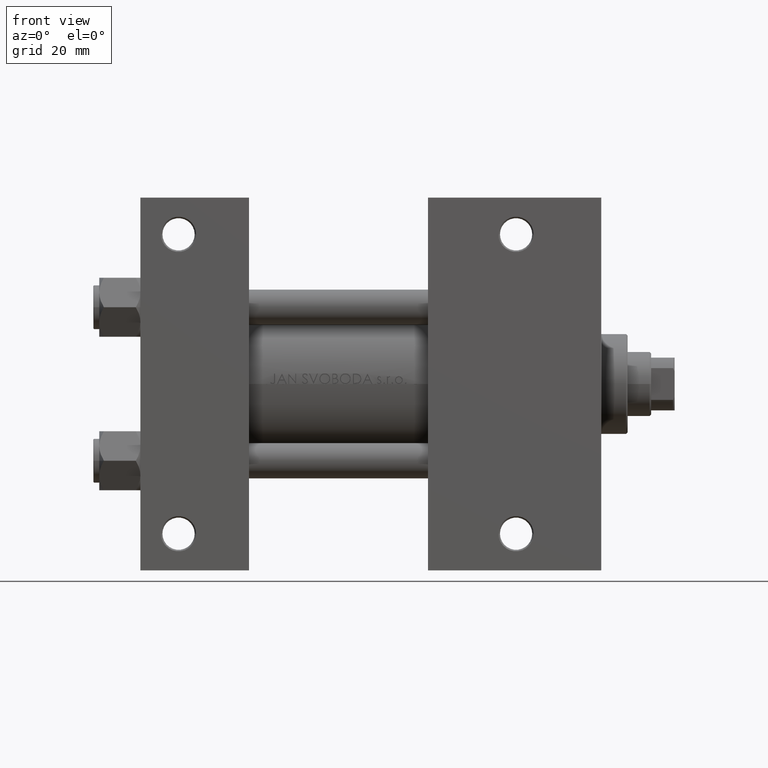
[diagram: clean part render]
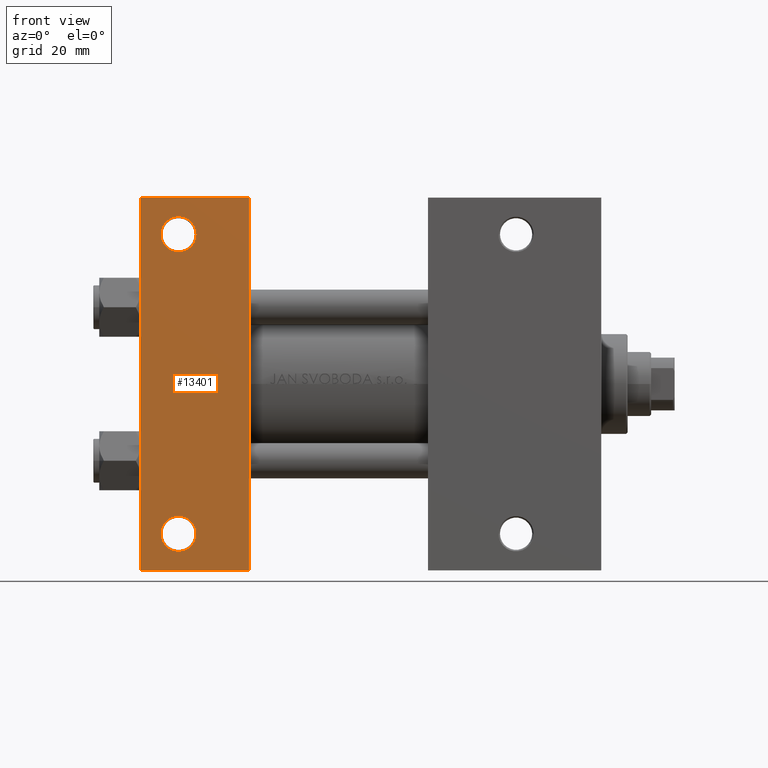
[diagram: same view with one face highlighted and labeled with its STEP entity id]
A machine part, front view. The second image highlights one B-rep face of the part: STEP entity #13401.
In plain terms, the highlighted planar face has unit normal (0, -1, -0).
Its self-contained STEP definition (entity closure, byte-faithful):
#148 = ORIENTED_EDGE ( 'NONE', *, *, #12468, .T. ) ;
#3079 = ORIENTED_EDGE ( 'NONE', *, *, #14623, .F. ) ;
#3389 = EDGE_CURVE ( 'NONE', #40096, #28656, #19967, .T. ) ;
#4715 = CARTESIAN_POINT ( 'NONE',  ( 18.99949999999998695, -51.00000000000001421, -37.50000000000000711 ) ) ;
#5717 = DIRECTION ( 'NONE',  ( 0.000000000000000000, 1.000000000000000000, 9.251858538542972814E-17 ) ) ;
#5757 = VERTEX_POINT ( 'NONE', #21140 ) ;
#6961 = DIRECTION ( 'NONE',  ( -1.000000000000000000, -0.000000000000000000, -0.000000000000000000 ) ) ;
#7093 = DIRECTION ( 'NONE',  ( 0.000000000000000000, -1.000000000000000000, -9.251858538542972814E-17 ) ) ;
#7136 = DIRECTION ( 'NONE',  ( -0.000000000000000000, -9.251858538542972814E-17, 1.000000000000000000 ) ) ;
#7231 = CARTESIAN_POINT ( 'NONE',  ( 7.000500000000006828, -51.00000000000001421, -37.50000000000000711 ) ) ;
#7977 = EDGE_CURVE ( 'NONE', #25122, #27821, #16122, .T. ) ;
#8168 = ORIENTED_EDGE ( 'NONE', *, *, #36824, .T. ) ;
#9272 = VECTOR ( 'NONE', #17292, 1000.000000000000000 ) ;
#9971 = LINE ( 'NONE', #29768, #20896 ) ;
#10694 = CARTESIAN_POINT ( 'NONE',  ( 18.99949999999996209, 50.99999999999999289, -37.50000000000000000 ) ) ;
#10863 = PLANE ( 'NONE',  #33609 ) ;
#11790 = CARTESIAN_POINT ( 'NONE',  ( 0.000000000000000000, 37.49999999999999289, -37.50000000000000000 ) ) ;
#12001 = CARTESIAN_POINT ( 'NONE',  ( 12.99999999999999822, 50.99999999999999289, -37.50000000000000000 ) ) ;
#12468 = EDGE_CURVE ( 'NONE', #5757, #24750, #15781, .T. ) ;
#12500 = DIRECTION ( 'NONE',  ( 0.000000000000000000, 1.000000000000000000, 0.000000000000000000 ) ) ;
#12509 = AXIS2_PLACEMENT_3D ( 'NONE', #46027, #19750, #19503 ) ;
#13401 = ADVANCED_FACE ( 'NONE', ( #29691, #44805, #40865 ), #10863, .T. ) ;
#14494 = EDGE_LOOP ( 'NONE', ( #3079, #27329, #148, #41548 ) ) ;
#14623 = EDGE_CURVE ( 'NONE', #19515, #31274, #48733, .T. ) ;
#15486 = DIRECTION ( 'NONE',  ( -0.000000000000000000, -9.251858538542972814E-17, 1.000000000000000000 ) ) ;
#15655 = CIRCLE ( 'NONE', #12509, 5.999499999999962974 ) ;
#15781 = LINE ( 'NONE', #22969, #31978 ) ;
#16122 = CIRCLE ( 'NONE', #25604, 5.999499999999990507 ) ;
#17292 = DIRECTION ( 'NONE',  ( 1.000000000000000000, 0.000000000000000000, 0.000000000000000000 ) ) ;
#18523 = AXIS2_PLACEMENT_3D ( 'NONE', #48526, #7136, #19680 ) ;
#19503 = DIRECTION ( 'NONE',  ( 0.000000000000000000, 1.000000000000000000, 0.000000000000000000 ) ) ;
#19515 = VERTEX_POINT ( 'NONE', #30180 ) ;
#19680 = DIRECTION ( 'NONE',  ( 0.000000000000000000, 1.000000000000000000, 0.000000000000000000 ) ) ;
#19750 = DIRECTION ( 'NONE',  ( -0.000000000000000000, -9.251858538542972814E-17, 1.000000000000000000 ) ) ;
#19967 = CIRCLE ( 'NONE', #23926, 5.999499999999962974 ) ;
#20069 = CIRCLE ( 'NONE', #18523, 5.999499999999990507 ) ;
#20216 = EDGE_CURVE ( 'NONE', #19515, #5757, #24961, .T. ) ;
#20896 = VECTOR ( 'NONE', #6961, 1000.000000000000000 ) ;
#21140 = CARTESIAN_POINT ( 'NONE',  ( 37.00000000000001421, 63.50000000000000000, -37.50000000000002132 ) ) ;
#21424 = CARTESIAN_POINT ( 'NONE',  ( 3.977209754999747208E-16, -63.50000000000000000, -37.49999999999999289 ) ) ;
#22253 = CARTESIAN_POINT ( 'NONE',  ( 7.000500000000034362, 50.99999999999999289, -37.50000000000000000 ) ) ;
#22428 = EDGE_CURVE ( 'NONE', #28656, #40096, #15655, .T. ) ;
#22969 = CARTESIAN_POINT ( 'NONE',  ( 37.00000000000000000, 37.49999999999999289, -37.50000000000000000 ) ) ;
#23926 = AXIS2_PLACEMENT_3D ( 'NONE', #12001, #15486, #12500 ) ;
#24750 = VERTEX_POINT ( 'NONE', #26924 ) ;
#24961 = LINE ( 'NONE', #39613, #9272 ) ;
#25122 = VERTEX_POINT ( 'NONE', #4715 ) ;
#25604 = AXIS2_PLACEMENT_3D ( 'NONE', #32189, #43592, #47052 ) ;
#26787 = EDGE_LOOP ( 'NONE', ( #47868, #43186 ) ) ;
#26924 = CARTESIAN_POINT ( 'NONE',  ( 37.00000000000000000, -63.50000000000000000, -37.49999999999999289 ) ) ;
#27171 = DIRECTION ( 'NONE',  ( 0.000000000000000000, -1.000000000000000000, -9.251858538542972814E-17 ) ) ;
#27329 = ORIENTED_EDGE ( 'NONE', *, *, #20216, .T. ) ;
#27821 = VERTEX_POINT ( 'NONE', #7231 ) ;
#28656 = VERTEX_POINT ( 'NONE', #22253 ) ;
#29394 = EDGE_LOOP ( 'NONE', ( #8168, #34364 ) ) ;
#29691 = FACE_BOUND ( 'NONE', #26787, .T. ) ;
#29768 = CARTESIAN_POINT ( 'NONE',  ( 3.977209754999747208E-16, -63.50000000000000000, -37.49999999999999289 ) ) ;
#29936 = DIRECTION ( 'NONE',  ( 0.000000000000000000, 9.251858538542972814E-17, -1.000000000000000000 ) ) ;
#30180 = CARTESIAN_POINT ( 'NONE',  ( 1.595073532467135441E-14, 63.50000000000000000, -37.50000000000002132 ) ) ;
#31274 = VERTEX_POINT ( 'NONE', #21424 ) ;
#31978 = VECTOR ( 'NONE', #27171, 1000.000000000000000 ) ;
#32189 = CARTESIAN_POINT ( 'NONE',  ( 12.99999999999999822, -51.00000000000001421, -37.50000000000000711 ) ) ;
#33609 = AXIS2_PLACEMENT_3D ( 'NONE', #37633, #29936, #5717 ) ;
#34364 = ORIENTED_EDGE ( 'NONE', *, *, #7977, .T. ) ;
#36109 = EDGE_CURVE ( 'NONE', #24750, #31274, #9971, .T. ) ;
#36824 = EDGE_CURVE ( 'NONE', #27821, #25122, #20069, .T. ) ;
#37633 = CARTESIAN_POINT ( 'NONE',  ( 37.00000000000000000, 37.49999999999999289, -37.50000000000000000 ) ) ;
#39613 = CARTESIAN_POINT ( 'NONE',  ( 1.595073532467135441E-14, 63.50000000000000000, -37.50000000000002132 ) ) ;
#40096 = VERTEX_POINT ( 'NONE', #10694 ) ;
#40865 = FACE_OUTER_BOUND ( 'NONE', #14494, .T. ) ;
#41548 = ORIENTED_EDGE ( 'NONE', *, *, #36109, .T. ) ;
#43186 = ORIENTED_EDGE ( 'NONE', *, *, #3389, .T. ) ;
#43592 = DIRECTION ( 'NONE',  ( -0.000000000000000000, -9.251858538542972814E-17, 1.000000000000000000 ) ) ;
#44805 = FACE_BOUND ( 'NONE', #29394, .T. ) ;
#46027 = CARTESIAN_POINT ( 'NONE',  ( 12.99999999999999822, 50.99999999999999289, -37.50000000000000000 ) ) ;
#46291 = VECTOR ( 'NONE', #7093, 1000.000000000000000 ) ;
#47052 = DIRECTION ( 'NONE',  ( 0.000000000000000000, 1.000000000000000000, 0.000000000000000000 ) ) ;
#47868 = ORIENTED_EDGE ( 'NONE', *, *, #22428, .T. ) ;
#48526 = CARTESIAN_POINT ( 'NONE',  ( 12.99999999999999822, -51.00000000000001421, -37.50000000000000711 ) ) ;
#48733 = LINE ( 'NONE', #11790, #46291 ) ;